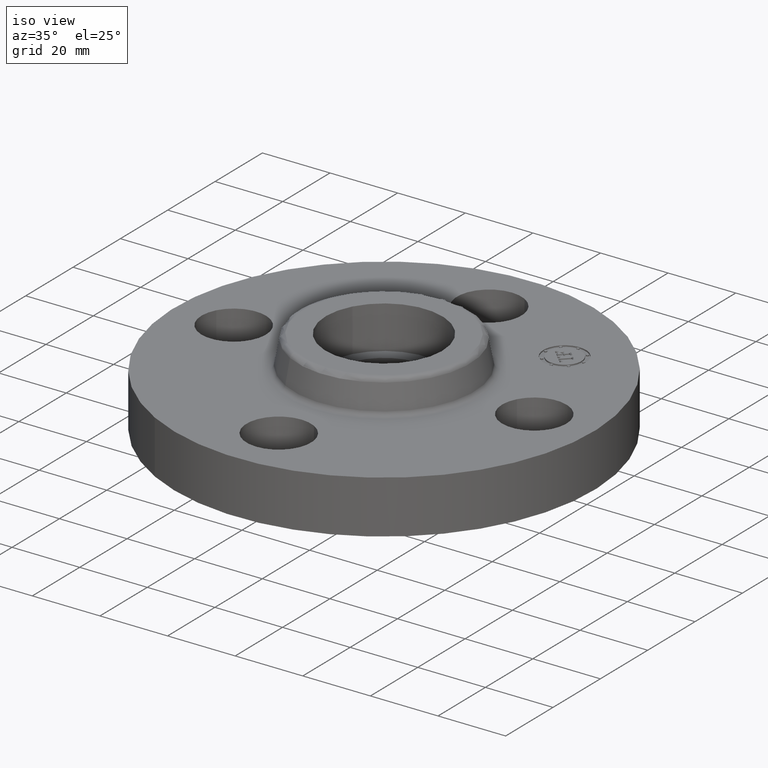
[diagram: clean part render]
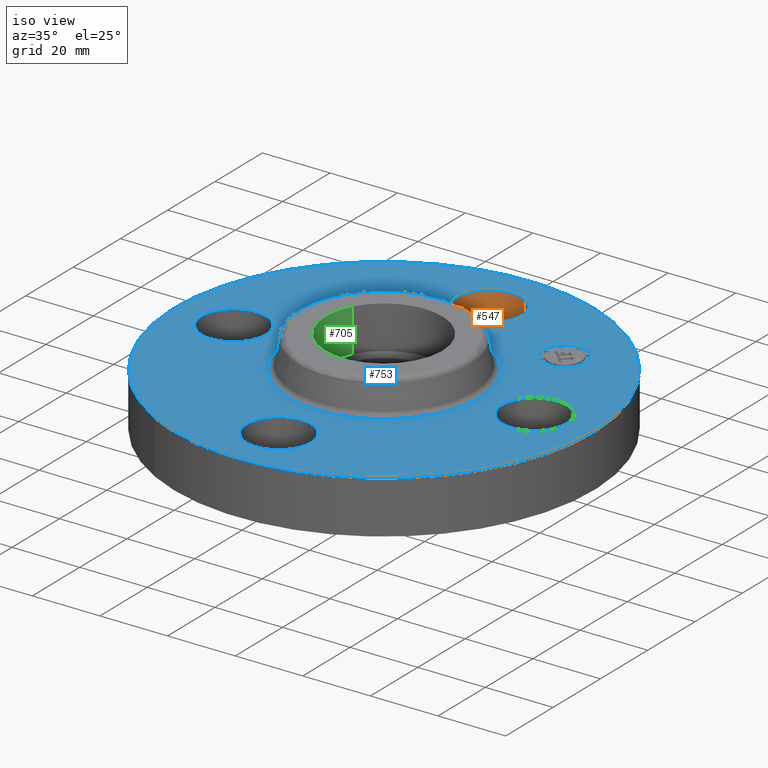
[diagram: same view with three faces highlighted in distinct colors, each labeled with its STEP entity id]
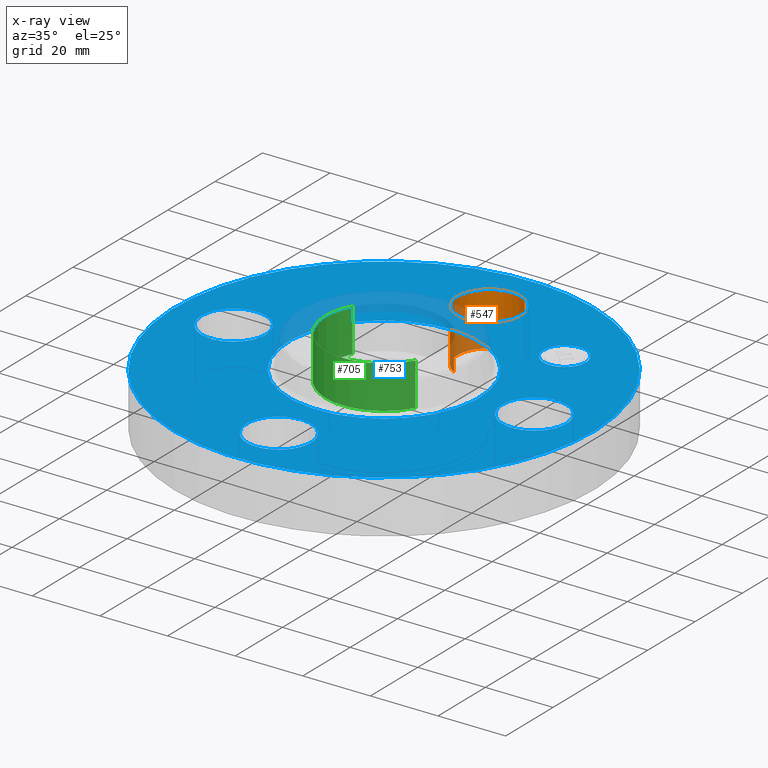
[diagram: x-ray of the same camera — body ghosted, the three highlighted faces saturated]
A machine part, iso view with three faces highlighted in distinct colors.
The next image is the same camera in x-ray (body ghosted, the three faces saturated) — at least one of them is partly hidden behind the body in this view.
Their STEP definitions:

[orange] entity #547 — the highlighted cylindrical surface (partial cylindrical patch) has radius 9.525 mm, axis along (0, 0, -1).
#274=AXIS2_PLACEMENT_3D('Circle Axis2P3D',#272,#273,$) ;
#508=AXIS2_PLACEMENT_3D('Cylinder Axis2P3D',#505,#506,#507) ;
#538=AXIS2_PLACEMENT_3D('Circle Axis2P3D',#536,#537,$) ;
#272=CARTESIAN_POINT('Axis2P3D Location',(-4.19611851827E-016,1.75000000001,0.)) ;
#276=CARTESIAN_POINT('Vertex',(-0.179784576977,1.4209065393,0.)) ;
#278=CARTESIAN_POINT('Vertex',(0.179784576977,2.07909346072,0.)) ;
#505=CARTESIAN_POINT('Axis2P3D Location',(-3.21469784777E-016,1.75000000001,0.616062992128)) ;
#510=CARTESIAN_POINT('Line Origine',(0.179784576977,2.07909346072,0.310000000001)) ;
#514=CARTESIAN_POINT('Vertex',(0.179784576977,2.07909346072,0.620000000002)) ;
#517=CARTESIAN_POINT('Line Origine',(-0.179784576977,1.4209065393,0.310000000001)) ;
#521=CARTESIAN_POINT('Vertex',(-0.179784576977,1.4209065393,0.620000000002)) ;
#536=CARTESIAN_POINT('Axis2P3D Location',(-3.21469784777E-016,1.75000000001,0.620000000002)) ;
#273=DIRECTION('Axis2P3D Direction',(0.,0.,-0.0393700787402)) ;
#506=DIRECTION('Axis2P3D Direction',(0.,0.,-0.0393700787402)) ;
#507=DIRECTION('Axis2P3D XDirection',(-0.0188750212049,-0.0345504945626,-0.)) ;
#511=DIRECTION('Vector Direction',(0.,0.,-0.0393700787402)) ;
#518=DIRECTION('Vector Direction',(0.,0.,-0.0393700787402)) ;
#537=DIRECTION('Axis2P3D Direction',(0.,0.,-0.0393700787402)) ;
#512=VECTOR('Line Direction',#511,0.0393700787402) ;
#519=VECTOR('Line Direction',#518,0.0393700787402) ;
#542=ORIENTED_EDGE('',*,*,#523,.F.) ;
#543=ORIENTED_EDGE('',*,*,#280,.T.) ;
#544=ORIENTED_EDGE('',*,*,#516,.T.) ;
#545=ORIENTED_EDGE('',*,*,#540,.F.) ;
#547=ADVANCED_FACE('PartBody',(#546),#509,.F.) ;
#275=CIRCLE('generated circle',#274,0.375000000001) ;
#539=CIRCLE('generated circle',#538,0.375000000001) ;
#509=CYLINDRICAL_SURFACE('generated cylinder',#508,0.375000000001) ;
#280=EDGE_CURVE('',#277,#279,#275,.T.) ;
#516=EDGE_CURVE('',#279,#515,#513,.F.) ;
#523=EDGE_CURVE('',#277,#522,#520,.F.) ;
#540=EDGE_CURVE('',#522,#515,#539,.T.) ;
#541=EDGE_LOOP('',(#542,#543,#544,#545)) ;
#546=FACE_OUTER_BOUND('',#541,.T.) ;
#513=LINE('Line',#510,#512) ;
#520=LINE('Line',#517,#519) ;
#277=VERTEX_POINT('',#276) ;
#279=VERTEX_POINT('',#278) ;
#515=VERTEX_POINT('',#514) ;
#522=VERTEX_POINT('',#521) ;

[blue] entity #753 — the highlighted planar face has unit normal (0, 0, -1).
#305=AXIS2_PLACEMENT_3D('Circle Axis2P3D',#303,#304,$) ;
#324=AXIS2_PLACEMENT_3D('Circle Axis2P3D',#322,#323,$) ;
#341=AXIS2_PLACEMENT_3D('Circle Axis2P3D',#339,#340,$) ;
#376=AXIS2_PLACEMENT_3D('Circle Axis2P3D',#374,#375,$) ;
#526=AXIS2_PLACEMENT_3D('Circle Axis2P3D',#524,#525,$) ;
#538=AXIS2_PLACEMENT_3D('Circle Axis2P3D',#536,#537,$) ;
#569=AXIS2_PLACEMENT_3D('Circle Axis2P3D',#567,#568,$) ;
#581=AXIS2_PLACEMENT_3D('Circle Axis2P3D',#579,#580,$) ;
#612=AXIS2_PLACEMENT_3D('Circle Axis2P3D',#610,#611,$) ;
#624=AXIS2_PLACEMENT_3D('Circle Axis2P3D',#622,#623,$) ;
#655=AXIS2_PLACEMENT_3D('Circle Axis2P3D',#653,#654,$) ;
#667=AXIS2_PLACEMENT_3D('Circle Axis2P3D',#665,#666,$) ;
#709=AXIS2_PLACEMENT_3D('Plane Axis2P3D',#706,#707,#708) ;
#737=AXIS2_PLACEMENT_3D('Circle Axis2P3D',#735,#736,$) ;
#746=AXIS2_PLACEMENT_3D('Circle Axis2P3D',#744,#745,$) ;
#300=CARTESIAN_POINT('Vertex',(-1.1697983142,-2.14130145102,0.620000000002)) ;
#303=CARTESIAN_POINT('Axis2P3D Location',(0.,0.,0.620000000002)) ;
#307=CARTESIAN_POINT('Vertex',(1.1697983142,2.14130145102,0.620000000002)) ;
#322=CARTESIAN_POINT('Axis2P3D Location',(0.,0.,0.620000000002)) ;
#339=CARTESIAN_POINT('Axis2P3D Location',(0.,0.,0.620000000002)) ;
#343=CARTESIAN_POINT('Vertex',(0.53232821848,0.974420267848,0.620000000002)) ;
#345=CARTESIAN_POINT('Vertex',(-0.53232821848,-0.974420267848,0.620000000002)) ;
#374=CARTESIAN_POINT('Axis2P3D Location',(0.,0.,0.620000000002)) ;
#514=CARTESIAN_POINT('Vertex',(0.179784576977,2.07909346072,0.620000000002)) ;
#521=CARTESIAN_POINT('Vertex',(-0.179784576977,1.4209065393,0.620000000002)) ;
#524=CARTESIAN_POINT('Axis2P3D Location',(-3.21469784777E-016,1.75000000001,0.620000000002)) ;
#536=CARTESIAN_POINT('Axis2P3D Location',(-3.21469784777E-016,1.75000000001,0.620000000002)) ;
#557=CARTESIAN_POINT('Vertex',(-2.07909346072,0.179784576977,0.620000000002)) ;
#564=CARTESIAN_POINT('Vertex',(-1.4209065393,-0.179784576977,0.620000000002)) ;
#567=CARTESIAN_POINT('Axis2P3D Location',(-1.75000000001,-2.14313189852E-016,0.620000000002)) ;
#579=CARTESIAN_POINT('Axis2P3D Location',(-1.75000000001,-2.14313189852E-016,0.620000000002)) ;
#600=CARTESIAN_POINT('Vertex',(-0.179784576977,-2.07909346072,0.620000000002)) ;
#607=CARTESIAN_POINT('Vertex',(0.179784576977,-1.4209065393,0.620000000002)) ;
#610=CARTESIAN_POINT('Axis2P3D Location',(-1.72584639625E-016,-1.75000000001,0.620000000002)) ;
#622=CARTESIAN_POINT('Axis2P3D Location',(-1.72584639625E-016,-1.75000000001,0.620000000002)) ;
#643=CARTESIAN_POINT('Vertex',(1.4209065393,0.179784576977,0.620000000002)) ;
#650=CARTESIAN_POINT('Vertex',(2.07909346072,-0.179784576977,0.620000000002)) ;
#653=CARTESIAN_POINT('Axis2P3D Location',(1.75000000001,0.,0.620000000002)) ;
#665=CARTESIAN_POINT('Axis2P3D Location',(1.75000000001,0.,0.620000000002)) ;
#706=CARTESIAN_POINT('Axis2P3D Location',(0.,2.44000000001,0.620000000002)) ;
#735=CARTESIAN_POINT('Axis2P3D Location',(1.23743686708,1.23743686708,0.620000000002)) ;
#739=CARTESIAN_POINT('Vertex',(1.06242793874,1.41244579543,0.620000000002)) ;
#741=CARTESIAN_POINT('Vertex',(1.41244579543,1.06242793874,0.620000000002)) ;
#744=CARTESIAN_POINT('Axis2P3D Location',(1.23743686708,1.23743686708,0.620000000002)) ;
#304=DIRECTION('Axis2P3D Direction',(0.,0.,-0.0393700787402)) ;
#323=DIRECTION('Axis2P3D Direction',(0.,0.,-0.0393700787402)) ;
#340=DIRECTION('Axis2P3D Direction',(0.,0.,-0.0393700787402)) ;
#375=DIRECTION('Axis2P3D Direction',(0.,0.,-0.0393700787402)) ;
#525=DIRECTION('Axis2P3D Direction',(0.,0.,-0.0393700787402)) ;
#537=DIRECTION('Axis2P3D Direction',(0.,0.,-0.0393700787402)) ;
#568=DIRECTION('Axis2P3D Direction',(-0.,0.,-0.0393700787402)) ;
#580=DIRECTION('Axis2P3D Direction',(-0.,0.,-0.0393700787402)) ;
#611=DIRECTION('Axis2P3D Direction',(0.,-0.,-0.0393700787402)) ;
#623=DIRECTION('Axis2P3D Direction',(0.,-0.,-0.0393700787402)) ;
#654=DIRECTION('Axis2P3D Direction',(0.,-0.,-0.0393700787402)) ;
#666=DIRECTION('Axis2P3D Direction',(0.,-0.,-0.0393700787402)) ;
#707=DIRECTION('Axis2P3D Direction',(0.,0.,-0.0393700787402)) ;
#708=DIRECTION('Axis2P3D XDirection',(0.0393700787402,0.,0.)) ;
#736=DIRECTION('Axis2P3D Direction',(0.,0.,-0.0393700787402)) ;
#745=DIRECTION('Axis2P3D Direction',(0.,0.,-0.0393700787402)) ;
#712=ORIENTED_EDGE('',*,*,#326,.F.) ;
#713=ORIENTED_EDGE('',*,*,#309,.F.) ;
#716=ORIENTED_EDGE('',*,*,#657,.T.) ;
#717=ORIENTED_EDGE('',*,*,#669,.T.) ;
#720=ORIENTED_EDGE('',*,*,#378,.T.) ;
#721=ORIENTED_EDGE('',*,*,#347,.T.) ;
#724=ORIENTED_EDGE('',*,*,#614,.T.) ;
#725=ORIENTED_EDGE('',*,*,#626,.T.) ;
#728=ORIENTED_EDGE('',*,*,#571,.T.) ;
#729=ORIENTED_EDGE('',*,*,#583,.T.) ;
#732=ORIENTED_EDGE('',*,*,#528,.T.) ;
#733=ORIENTED_EDGE('',*,*,#540,.T.) ;
#750=ORIENTED_EDGE('',*,*,#743,.T.) ;
#751=ORIENTED_EDGE('',*,*,#748,.T.) ;
#718=FACE_BOUND('',#715,.T.) ;
#722=FACE_BOUND('',#719,.T.) ;
#726=FACE_BOUND('',#723,.T.) ;
#730=FACE_BOUND('',#727,.T.) ;
#734=FACE_BOUND('',#731,.T.) ;
#752=FACE_BOUND('',#749,.T.) ;
#753=ADVANCED_FACE('PartBody',(#714,#718,#722,#726,#730,#734,#752),#710,.F.) ;
#306=CIRCLE('generated circle',#305,2.44000000001) ;
#325=CIRCLE('generated circle',#324,2.44000000001) ;
#342=CIRCLE('generated circle',#341,1.11034597788) ;
#377=CIRCLE('generated circle',#376,1.11034597788) ;
#527=CIRCLE('generated circle',#526,0.375000000001) ;
#539=CIRCLE('generated circle',#538,0.375000000001) ;
#570=CIRCLE('generated circle',#569,0.375000000002) ;
#582=CIRCLE('generated circle',#581,0.375000000002) ;
#613=CIRCLE('generated circle',#612,0.375000000001) ;
#625=CIRCLE('generated circle',#624,0.375000000001) ;
#656=CIRCLE('generated circle',#655,0.375000000001) ;
#668=CIRCLE('generated circle',#667,0.375000000001) ;
#738=CIRCLE('generated circle',#737,0.247500000001) ;
#747=CIRCLE('generated circle',#746,0.247500000001) ;
#309=EDGE_CURVE('',#301,#308,#306,.T.) ;
#326=EDGE_CURVE('',#308,#301,#325,.T.) ;
#347=EDGE_CURVE('',#344,#346,#342,.T.) ;
#378=EDGE_CURVE('',#346,#344,#377,.T.) ;
#528=EDGE_CURVE('',#515,#522,#527,.T.) ;
#540=EDGE_CURVE('',#522,#515,#539,.T.) ;
#571=EDGE_CURVE('',#558,#565,#570,.T.) ;
#583=EDGE_CURVE('',#565,#558,#582,.T.) ;
#614=EDGE_CURVE('',#601,#608,#613,.T.) ;
#626=EDGE_CURVE('',#608,#601,#625,.T.) ;
#657=EDGE_CURVE('',#644,#651,#656,.T.) ;
#669=EDGE_CURVE('',#651,#644,#668,.T.) ;
#743=EDGE_CURVE('',#740,#742,#738,.T.) ;
#748=EDGE_CURVE('',#742,#740,#747,.T.) ;
#711=EDGE_LOOP('',(#712,#713)) ;
#715=EDGE_LOOP('',(#716,#717)) ;
#719=EDGE_LOOP('',(#720,#721)) ;
#723=EDGE_LOOP('',(#724,#725)) ;
#727=EDGE_LOOP('',(#728,#729)) ;
#731=EDGE_LOOP('',(#732,#733)) ;
#749=EDGE_LOOP('',(#750,#751)) ;
#714=FACE_OUTER_BOUND('',#711,.T.) ;
#710=PLANE('',#709) ;
#301=VERTEX_POINT('',#300) ;
#308=VERTEX_POINT('',#307) ;
#344=VERTEX_POINT('',#343) ;
#346=VERTEX_POINT('',#345) ;
#515=VERTEX_POINT('',#514) ;
#522=VERTEX_POINT('',#521) ;
#558=VERTEX_POINT('',#557) ;
#565=VERTEX_POINT('',#564) ;
#601=VERTEX_POINT('',#600) ;
#608=VERTEX_POINT('',#607) ;
#644=VERTEX_POINT('',#643) ;
#651=VERTEX_POINT('',#650) ;
#740=VERTEX_POINT('',#739) ;
#742=VERTEX_POINT('',#741) ;

[green] entity #705 — the highlighted cylindrical surface (partial cylindrical patch) has radius 17.272 mm, axis along (0, 0, -1).
#51=AXIS2_PLACEMENT_3D('Circle Axis2P3D',#49,#50,$) ;
#497=AXIS2_PLACEMENT_3D('Circle Axis2P3D',#495,#496,$) ;
#680=AXIS2_PLACEMENT_3D('Cylinder Axis2P3D',#677,#678,#679) ;
#44=CARTESIAN_POINT('Vertex',(-0.596756142088,0.326009366252,0.500000000002)) ;
#46=CARTESIAN_POINT('Vertex',(0.596756142088,-0.326009366252,0.500000000002)) ;
#49=CARTESIAN_POINT('Axis2P3D Location',(1.39870617276E-016,1.04902962957E-016,0.500000000002)) ;
#490=CARTESIAN_POINT('Vertex',(-0.596756142088,0.326009366252,1.)) ;
#492=CARTESIAN_POINT('Vertex',(0.596756142088,-0.326009366252,1.)) ;
#495=CARTESIAN_POINT('Axis2P3D Location',(2.44773580232E-016,4.19611851827E-016,1.)) ;
#677=CARTESIAN_POINT('Axis2P3D Location',(1.39870617276E-016,1.04902962957E-016,0.99606299213)) ;
#682=CARTESIAN_POINT('Line Origine',(-0.596756142088,0.326009366252,0.750000000003)) ;
#687=CARTESIAN_POINT('Line Origine',(0.596756142088,-0.326009366252,0.750000000003)) ;
#50=DIRECTION('Axis2P3D Direction',(0.,0.,-0.0393700787402)) ;
#496=DIRECTION('Axis2P3D Direction',(0.,0.,-0.0393700787402)) ;
#678=DIRECTION('Axis2P3D Direction',(0.,0.,-0.0393700787402)) ;
#679=DIRECTION('Axis2P3D XDirection',(0.0345504945626,-0.0188750212049,0.)) ;
#683=DIRECTION('Vector Direction',(0.,0.,-0.0393700787402)) ;
#688=DIRECTION('Vector Direction',(0.,0.,-0.0393700787402)) ;
#684=VECTOR('Line Direction',#683,0.0393700787402) ;
#689=VECTOR('Line Direction',#688,0.0393700787402) ;
#700=ORIENTED_EDGE('',*,*,#499,.F.) ;
#701=ORIENTED_EDGE('',*,*,#691,.F.) ;
#702=ORIENTED_EDGE('',*,*,#53,.T.) ;
#703=ORIENTED_EDGE('',*,*,#686,.T.) ;
#705=ADVANCED_FACE('PartBody',(#704),#681,.F.) ;
#52=CIRCLE('generated circle',#51,0.680000000003) ;
#498=CIRCLE('generated circle',#497,0.680000000003) ;
#681=CYLINDRICAL_SURFACE('generated cylinder',#680,0.680000000003) ;
#53=EDGE_CURVE('',#47,#45,#52,.T.) ;
#499=EDGE_CURVE('',#493,#491,#498,.T.) ;
#686=EDGE_CURVE('',#45,#491,#685,.F.) ;
#691=EDGE_CURVE('',#47,#493,#690,.F.) ;
#699=EDGE_LOOP('',(#700,#701,#702,#703)) ;
#704=FACE_OUTER_BOUND('',#699,.T.) ;
#685=LINE('Line',#682,#684) ;
#690=LINE('Line',#687,#689) ;
#45=VERTEX_POINT('',#44) ;
#47=VERTEX_POINT('',#46) ;
#491=VERTEX_POINT('',#490) ;
#493=VERTEX_POINT('',#492) ;